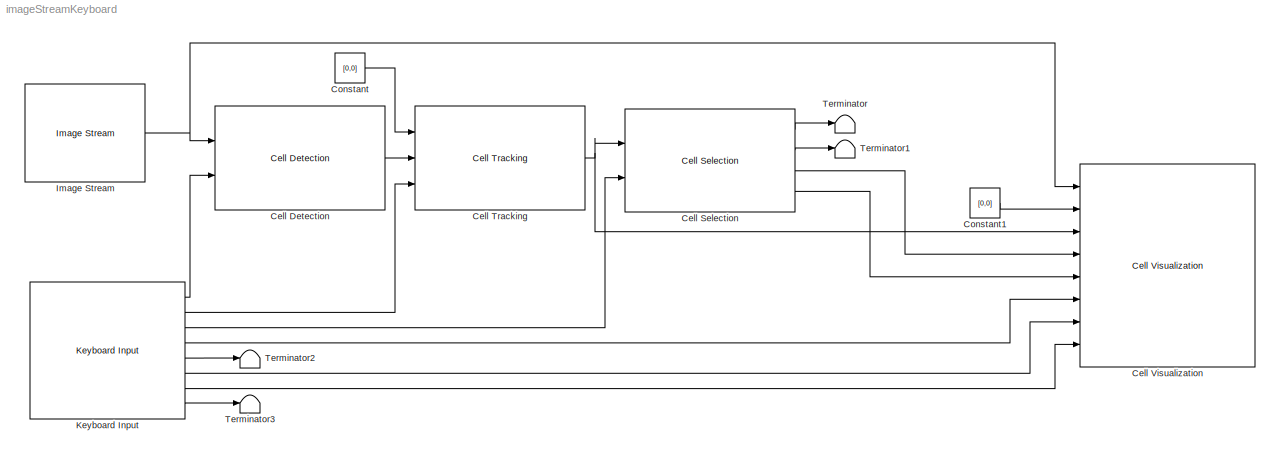
MODEL imageStreamKeyboard
KIND model
BLOCK [Reference] Cell Detection  REF=LemmingToolbox/Cell Detection
  FunctionWithSeparateData = off
  Ports = [2, 1]
  RTWMemSecDataConstants = Inherit from model
  RTWMemSecDataInternal = Inherit from model
  RTWMemSecDataParameters = Inherit from model
  RTWMemSecFuncExecute = Inherit from model
  RTWMemSecFuncInitTerm = Inherit from model
  SID = 1
  ShowPortLabels = FromPortIcon
  SourceBlock = LemmingToolbox/Cell Detection
  SourceType = Cell Detection
  SystemSampleTime = -1
  binning = 2
  cellSizeLowerLimit = 70
  cellSizeUpperLimit = 2000
  imageDim = [1344,1024]
  maxNumCells = 1000
  resizeScale = 0.5
  sampleTimes = [0.2, 0.1]
BLOCK [Reference] Cell Selection  REF=LemmingToolbox/Cell Selection
  FunctionWithSeparateData = off
  Ports = [2, 4]
  RTWMemSecDataConstants = Inherit from model
  RTWMemSecDataInternal = Inherit from model
  RTWMemSecDataParameters = Inherit from model
  RTWMemSecFuncExecute = Inherit from model
  RTWMemSecFuncInitTerm = Inherit from model
  SID = 2
  ShowPortLabels = FromPortIcon
  SourceBlock = LemmingToolbox/Cell Selection
  SourceType = Cell Tracking
  SystemSampleTime = -1
  maxNumCells = 1000
  numFrames = 8
  sampleTimes = [0.2, 0.1]
BLOCK [Reference] Cell Tracking  REF=LemmingToolbox/Cell Tracking
  FunctionWithSeparateData = off
  Ports = [3, 1]
  RTWMemSecDataConstants = Inherit from model
  RTWMemSecDataInternal = Inherit from model
  RTWMemSecDataParameters = Inherit from model
  RTWMemSecFuncExecute = Inherit from model
  RTWMemSecFuncInitTerm = Inherit from model
  SID = 3
  ShowPortLabels = FromPortIcon
  SourceBlock = LemmingToolbox/Cell Tracking
  SourceType = Cell Detection
  SystemSampleTime = -1
  maxDistance = 0.1
  maxNumCells = 1000
  sampleTimes = [0.2, 0.1]
  tKeepLost = 10
BLOCK [Reference] Cell Visualization  REF=LemmingToolbox/Cell Visualization
  FunctionWithSeparateData = off
  Ports = [8]
  RTWMemSecDataConstants = Inherit from model
  RTWMemSecDataInternal = Inherit from model
  RTWMemSecDataParameters = Inherit from model
  RTWMemSecFuncExecute = Inherit from model
  RTWMemSecFuncInitTerm = Inherit from model
  SID = 4
  ShowPortLabels = FromPortIcon
  SourceBlock = LemmingToolbox/Cell Visualization
  SourceType = Lemming Path Plotter
  SystemSampleTime = -1
  binning = 2
  coneAngle = pi/4
  coneWidth = 150
  imageDim = [1344,1024]
  maxNumCells = 1000
  outputFilename = simulation.avi
  pathLength = 30
  sampleTimes = [0.3, 0.1]
BLOCK [Constant] Constant
  SID = 5
  Value = [0,0]
BLOCK [Constant] Constant1
  SID = 6
  Value = [0,0]
BLOCK [Reference] Image Stream  REF=LemmingToolbox/Image Stream
  FunctionWithSeparateData = off
  Ports = [0, 1]
  RTWMemSecDataConstants = Inherit from model
  RTWMemSecDataInternal = Inherit from model
  RTWMemSecDataParameters = Inherit from model
  RTWMemSecFuncExecute = Inherit from model
  RTWMemSecFuncInitTerm = Inherit from model
  SID = 7
  ShowPortLabels = FromPortIcon
  SourceBlock = LemmingToolbox/Image Stream
  SourceType = Microscope Connection
  SystemSampleTime = -1
  binning = 2
  imageDir = matlabroot/toolbox/LemmingToolbox/dummyImages
  sampleTimes = [0.2,0.1]
BLOCK [Reference] Keyboard Input  REF=LemmingToolbox/Keyboard Input
  FunctionWithSeparateData = off
  Ports = [0, 8]
  RTWMemSecDataConstants = Inherit from model
  RTWMemSecDataInternal = Inherit from model
  RTWMemSecDataParameters = Inherit from model
  RTWMemSecFuncExecute = Inherit from model
  RTWMemSecFuncInitTerm = Inherit from model
  SID = 8
  ShowPortLabels = FromPortIcon
  SourceBlock = LemmingToolbox/Keyboard Input
  SourceType = Keyboard Input
  SystemSampleTime = 1
  initThreshold = 0.015
  sampleTimes = [0.2, 0.1]
BLOCK [Terminator] Terminator
  SID = 9
BLOCK [Terminator] Terminator1
  SID = 10
BLOCK [Terminator] Terminator2
  SID = 11
BLOCK [Terminator] Terminator3
  SID = 12
LINE Cell Detection:1 -> Cell Tracking:2
LINE Cell Selection:1 -> Terminator:1
LINE Cell Selection:2 -> Terminator1:1
LINE Cell Selection:3 -> Cell Visualization:4
LINE Cell Selection:4 -> Cell Visualization:5
NET Cell Tracking:1 -> Cell Selection:1, Cell Visualization:3
LINE Constant1:1 -> Cell Visualization:2
LINE Constant:1 -> Cell Tracking:1
NET Image Stream:1 -> Cell Detection:1, Cell Visualization:1
LINE Keyboard Input:1 -> Cell Detection:2
LINE Keyboard Input:2 -> Cell Tracking:3
LINE Keyboard Input:3 -> Cell Selection:2
LINE Keyboard Input:4 -> Cell Visualization:6
LINE Keyboard Input:5 -> Terminator2:1
LINE Keyboard Input:6 -> Cell Visualization:7
LINE Keyboard Input:7 -> Cell Visualization:8
LINE Keyboard Input:8 -> Terminator3:1
note: NET lines group one-source signal fan-out (src -> all destinations, sorted); 1:1 wires keep LINE
